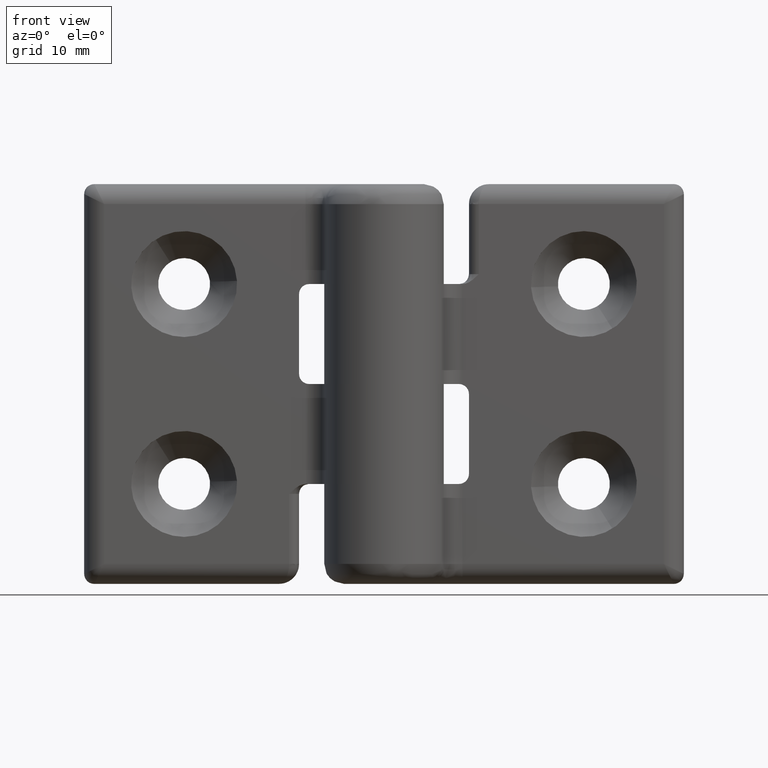
[diagram: clean part render]
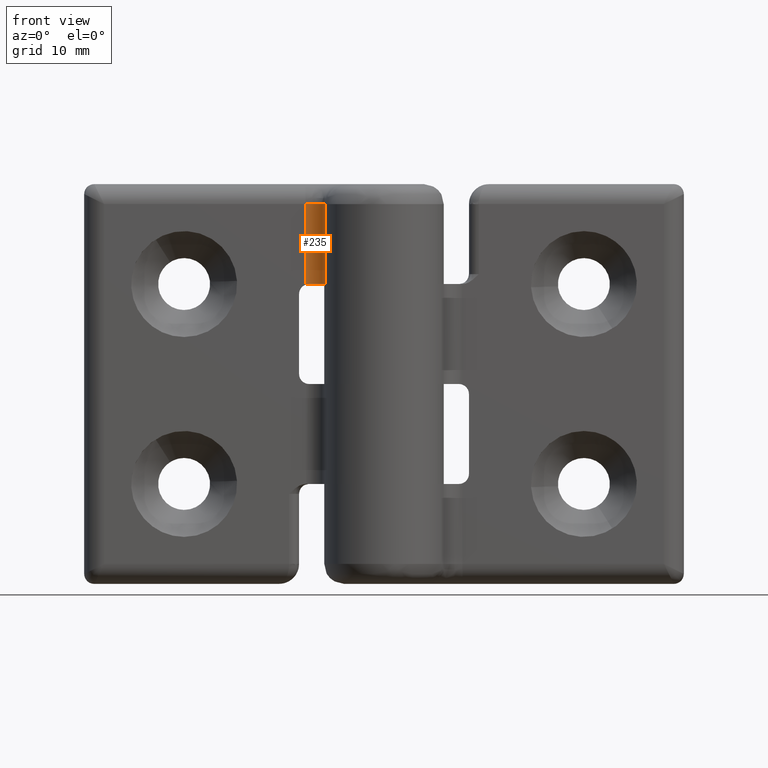
[diagram: same view with one face highlighted and labeled with its STEP entity id]
A machine part, front view. The second image highlights one B-rep face of the part: STEP entity #235.
In plain terms, the highlighted cylindrical surface (edge-blend (fillet) strip) has radius 2 mm, axis along (-0, -0, 1).
Its self-contained STEP definition (entity closure, byte-faithful):
#235=ADVANCED_FACE('',(#951),#950,.F.);
#950=CYLINDRICAL_SURFACE('',#1830,2.00000000000E+00);
#951=FACE_OUTER_BOUND('',#1831,.T.);
#1827=CARTESIAN_POINT('',(7.85811682275E+00,-1.50000000000E+00,1.79330046765E+00));
#1828=DIRECTION('',(7.33105065959E-16,-9.18432100960E-16,-1.00000000000E+00));
#1829=DIRECTION('',(-4.02525218605E-02,-9.99189538818E-01,8.88178419700E-16));
#1830=AXIS2_PLACEMENT_3D('',#1827,#1828,#1829);
#1831=EDGE_LOOP('',(#2335,#2336,#2337,#2338,#2339));
#2335=ORIENTED_EDGE('',*,*,#2767,.F.);
#2336=ORIENTED_EDGE('',*,*,#2720,.T.);
#2337=ORIENTED_EDGE('',*,*,#2768,.F.);
#2338=ORIENTED_EDGE('',*,*,#2756,.T.);
#2339=ORIENTED_EDGE('',*,*,#2769,.F.);
#2720=EDGE_CURVE('',#3856,#3849,#3857,.T.);
#2756=EDGE_CURVE('',#4070,#4091,#4098,.T.);
#2767=EDGE_CURVE('',#3856,#4171,#4172,.T.);
#2768=EDGE_CURVE('',#4070,#3849,#4178,.T.);
#2769=EDGE_CURVE('',#4171,#4091,#4184,.T.);
#3849=VERTEX_POINT('',#5220);
#3856=VERTEX_POINT('',#5225);
#3857=CIRCLE('',#5229,2.00000000000E+00);
#4070=VERTEX_POINT('',#5365);
#4091=VERTEX_POINT('',#5379);
#4098=(BOUNDED_CURVE() B_SPLINE_CURVE(3,(#5383,#5384,#5385,#5386,#5387,#5388,#5389,#5390),.UNSPECIFIED.,.F.,.F.) B_SPLINE_CURVE_WITH_KNOTS((4,2,2,4),(0.00000000000E+00,5.00000000000E-01,7.50000000000E-01,1.00000000000E+00),.UNSPECIFIED.) CURVE() GEOMETRIC_REPRESENTATION_ITEM() RATIONAL_B_SPLINE_CURVE((1.00000000000E+00,1.00000000000E+00,1.00000000000E+00,1.00000000000E+00,1.00000000000E+00,1.00000000000E+00,1.00000000000E+00,1.00000000000E+00)) REPRESENTATION_ITEM('') );
#4171=VERTEX_POINT('',#5447);
#4172=LINE('',#5448,#5449);
#4178=LINE('',#5451,#5452);
#4184=CIRCLE('',#5457,2.00000000000E+00);
#5220=CARTESIAN_POINT('',(7.85811682275E+00,5.00000000000E-01,2.00000000000E+00));
#5225=CARTESIAN_POINT('',(5.89358761706E+00,-1.12500000000E+00,2.00000000000E+00));
#5226=CARTESIAN_POINT('',(7.85811682275E+00,-1.50000000000E+00,2.00000000000E+00));
#5227=DIRECTION('',(5.23680077772E-16,-8.09287526212E-16,-1.00000000000E+00));
#5228=DIRECTION('',(9.82264602844E-01,-1.87500000000E-01,6.66133814775E-16));
#5229=AXIS2_PLACEMENT_3D('',#5226,#5227,#5228);
#5365=CARTESIAN_POINT('',(7.85811682275E+00,5.00000000000E-01,1.00663232137E+01));
#5379=CARTESIAN_POINT('',(7.50000000000E+00,4.67676889447E-01,1.00000000000E+01));
#5383=CARTESIAN_POINT('',(7.85811682275E+00,5.00000000000E-01,1.00663232137E+01));
#5384=CARTESIAN_POINT('',(7.80036614694E+00,5.00000000000E-01,1.00441726271E+01));
#5385=CARTESIAN_POINT('',(7.74156492115E+00,4.97502416285E-01,1.00277136459E+01));
#5386=CARTESIAN_POINT('',(7.65191225487E+00,4.89567726516E-01,1.00111389085E+01));
#5387=CARTESIAN_POINT('',(7.62178439812E+00,4.86224083681E-01,1.00069749456E+01));
#5388=CARTESIAN_POINT('',(7.56104148742E+00,4.78050901939E-01,1.00013989109E+01));
#5389=CARTESIAN_POINT('',(7.53042970927E+00,4.73215090795E-01,1.00000000000E+01));
#5390=CARTESIAN_POINT('',(7.50000000000E+00,4.67676889447E-01,1.00000000000E+01));
#5447=CARTESIAN_POINT('',(5.89358761706E+00,-1.12500000000E+00,1.00000000000E+01));
#5448=CARTESIAN_POINT('',(5.89358761706E+00,-1.12500000000E+00,2.00000000000E+00));
#5449=VECTOR('',#5450,8.00000000000E+00);
#5450=DIRECTION('',(0.00000000000E+00,0.00000000000E+00,1.00000000000E+00));
#5451=CARTESIAN_POINT('',(7.85811682275E+00,5.00000000000E-01,1.00663232137E+01));
#5452=VECTOR('',#5453,8.06632321371E+00);
#5453=DIRECTION('',(0.00000000000E+00,0.00000000000E+00,-1.00000000000E+00));
#5454=CARTESIAN_POINT('',(7.85811682275E+00,-1.50000000000E+00,1.00000000000E+01));
#5455=DIRECTION('',(2.18271953549E-13,-1.70821283307E-14,-1.00000000000E+00));
#5456=DIRECTION('',(9.82264602844E-01,-1.87500000000E-01,2.17603712827E-13));
#5457=AXIS2_PLACEMENT_3D('',#5454,#5455,#5456);